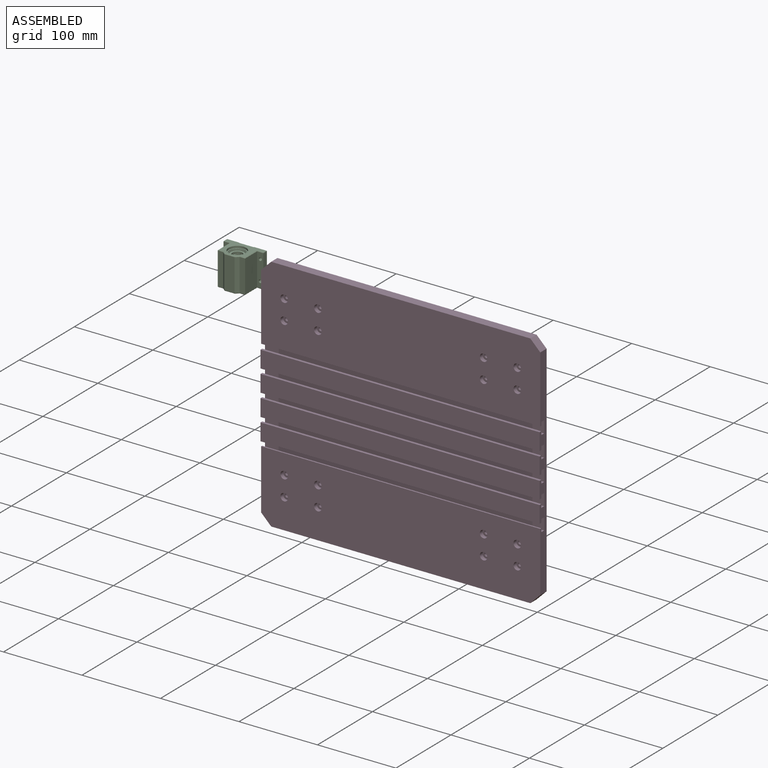
[diagram: assembled view]
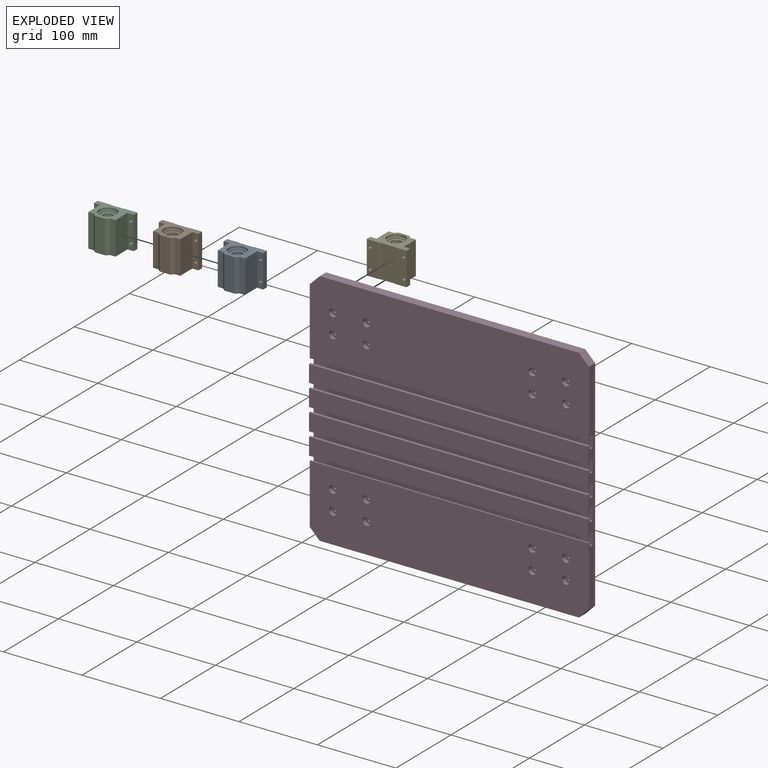
[diagram: exploded view]
GUIDED TOUR — MATED ASSEMBLY (Onshape document 6d747530b61adc1890723c05, AutoMate assembly 6d747530b61adc1890723c05_05204a91cc67c9219d2de99d_6c768d0ff865540b79f1cda2_default)

This assembly has 5 components, labeled P0..P4 below (a component is one placed occurrence of a part; the same part can appear more than once), held together by 1 mate. A mate is a constraint between two components; its type names the relative motion it leaves free:
  FASTENED — locks the two components together rigidly (no relative motion).
Axis/direction vectors are unit vectors and 'through' points are millimeter coordinates, both in the assembly's world frame.

MATES
  1. FASTENED "Fastened 1": P4 <-> P3, direction (0.000, -1.000, 0.000) through (-122.71, 11.77, 182.91) mm

ASSEMBLY ORDER
  1. P0 — the base component [order heuristic]
  2. P1 — core [order heuristic]
  3. P2 — core [order heuristic]
  4. P3 [order verified]
  5. P4 [order verified]
Order-tag legend:
  [order verified] — this step's position reverses a verified removal order: the component was checked to insert without passing through the ones already placed.
  [order heuristic] — the first 3 components form the assembly's core: parts whose collision-free extraction could not be verified, listed in mate-graph order.

Of the 5 components, 1 carries the full construction recipe — the FeatureScript program that regenerates the part's solid from scratch; the rest are supplied as boundary geometry only.
Each toured component is shown spotlighted twice — in the assembled view, then in the exploded view, where a leader line traces a displaced component back to its assembled socket (saturated green if recipe-attached, orange if geometry-only; every other component desaturated gray) — followed by its recipe or geometry summary and the mates that hold it.
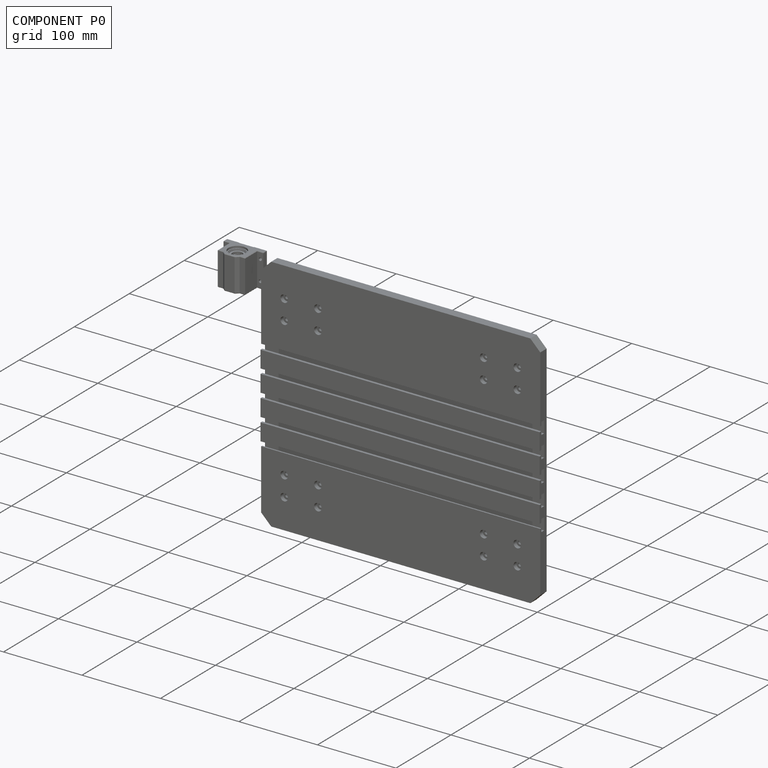
[diagram: component P0 — assembled]
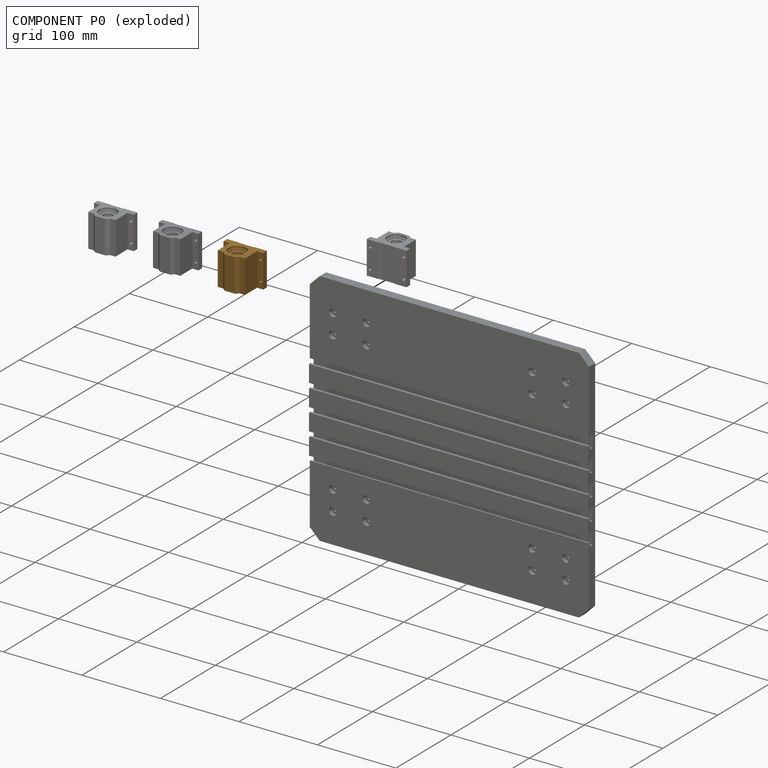
[diagram: component P0 — exploded]
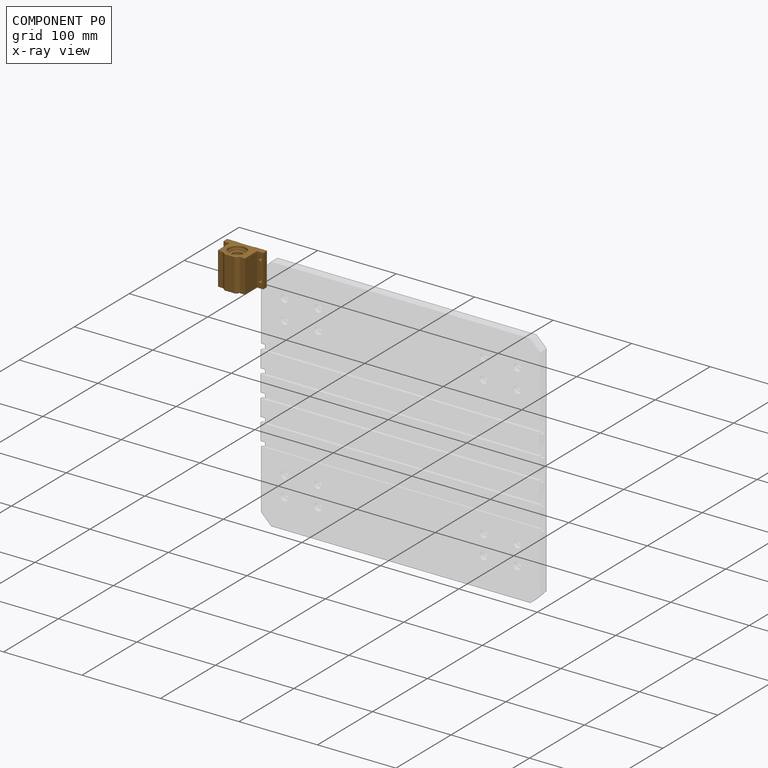
[diagram: component P0 — x-ray view]
COMPONENT P0 — geometry summary (no construction recipe available for this part):
  bounding box: 52.8 x 44.9 x 33.8 mm
  B-rep topology: 1 solid, 341 faces, 2242 edges
  volume: 40687 mm^3 (51% of its bounding box)
  symmetry: mirror-symmetric across its z mid-plane
Held by: no mates (free).
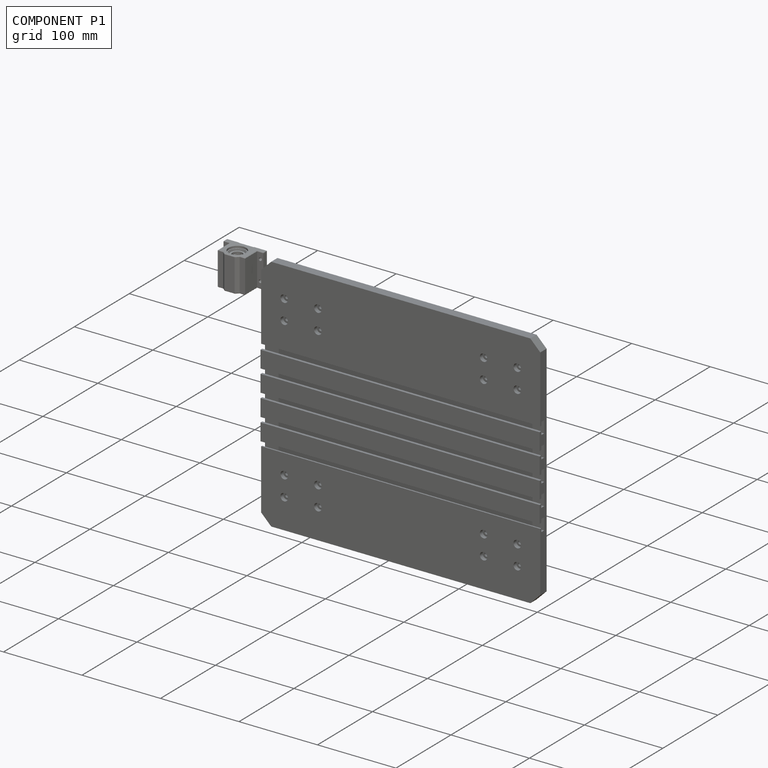
[diagram: component P1 — assembled]
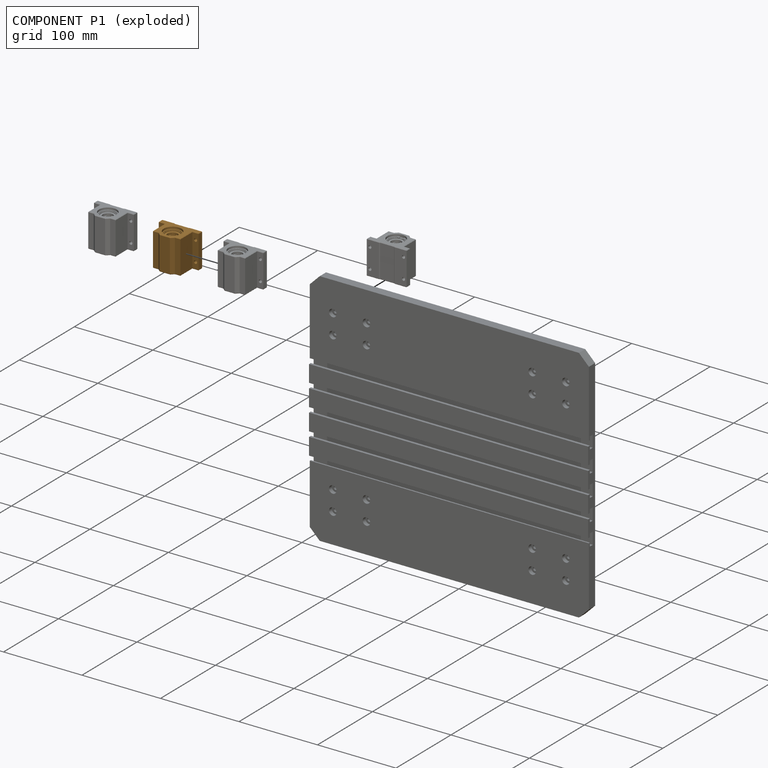
[diagram: component P1 — exploded]
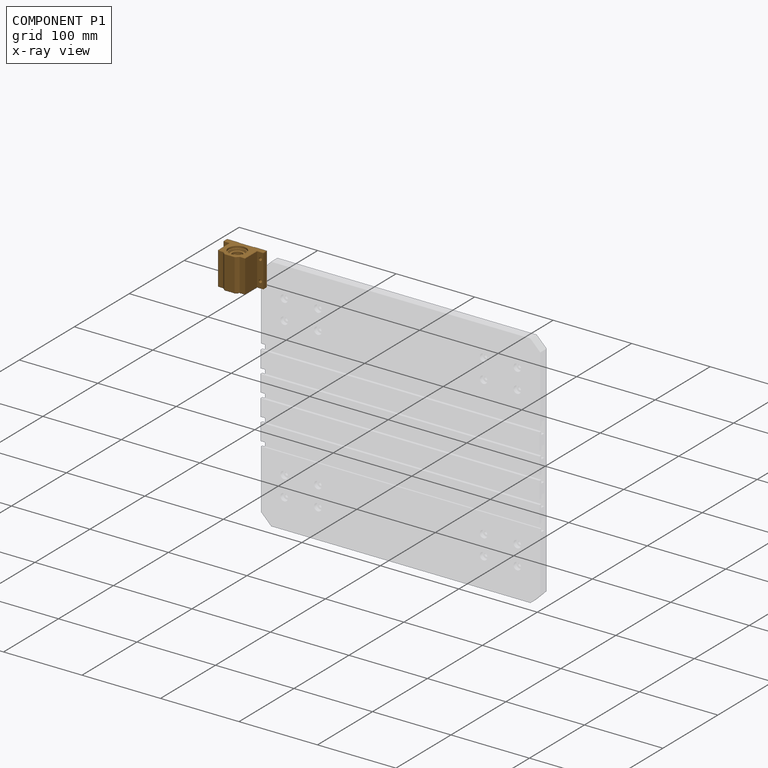
[diagram: component P1 — x-ray view]
COMPONENT P1 — geometry summary (no construction recipe available for this part):
  bounding box: 52.8 x 44.9 x 33.8 mm
  B-rep topology: 1 solid, 341 faces, 2242 edges
  volume: 40687 mm^3 (51% of its bounding box)
  symmetry: mirror-symmetric across its z mid-plane
Held by: no mates (free).
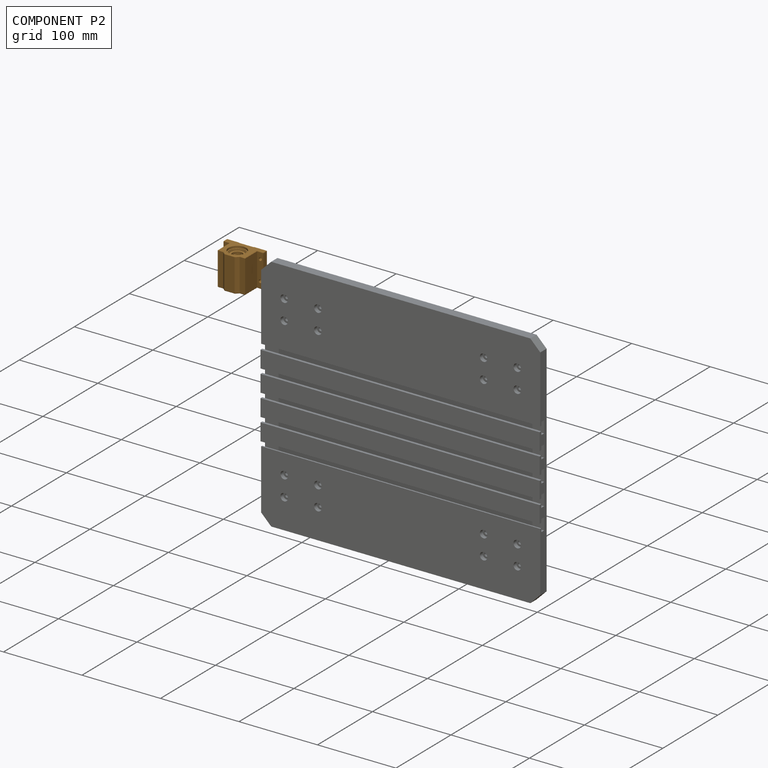
[diagram: component P2 — assembled]
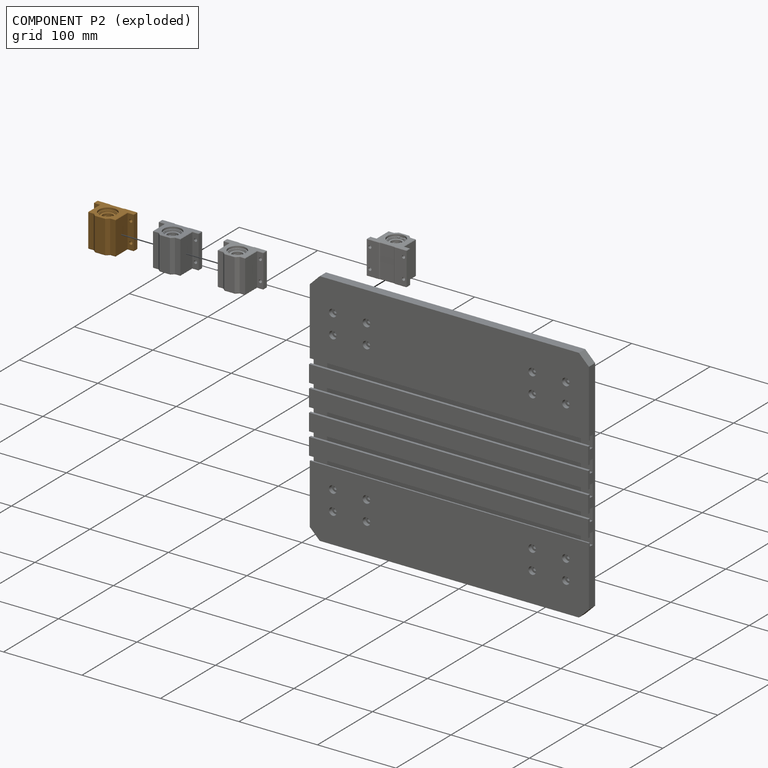
[diagram: component P2 — exploded]
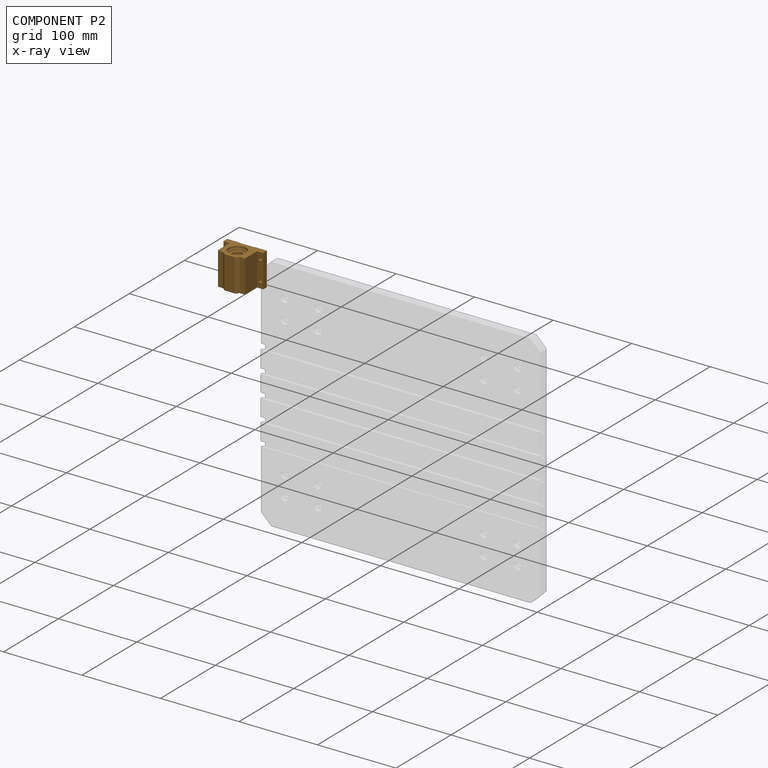
[diagram: component P2 — x-ray view]
COMPONENT P2 — geometry summary (no construction recipe available for this part):
  bounding box: 52.8 x 44.9 x 33.8 mm
  B-rep topology: 1 solid, 341 faces, 2242 edges
  volume: 40687 mm^3 (51% of its bounding box)
  symmetry: mirror-symmetric across its z mid-plane
Held by: no mates (free).
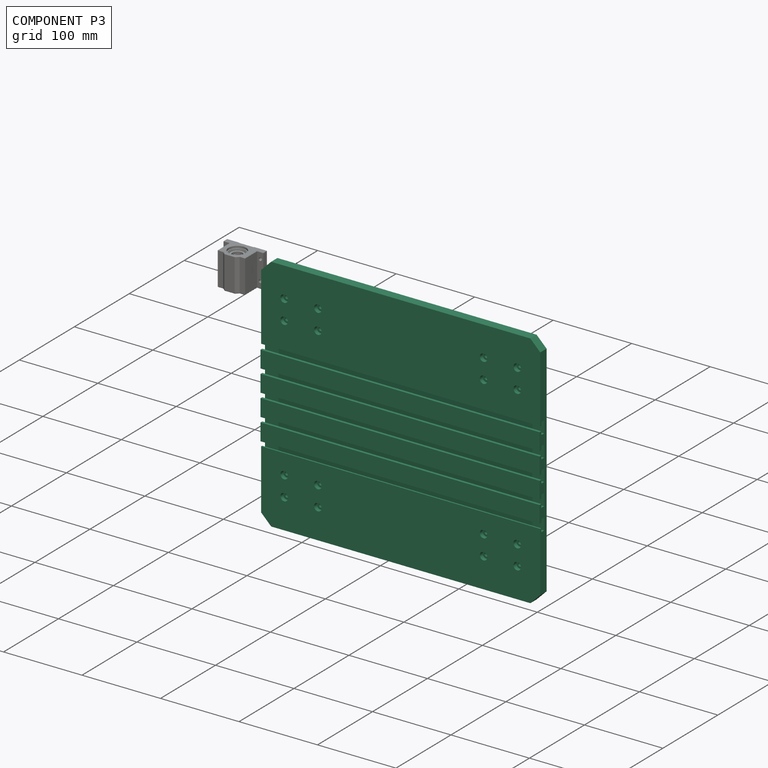
[diagram: component P3 — assembled]
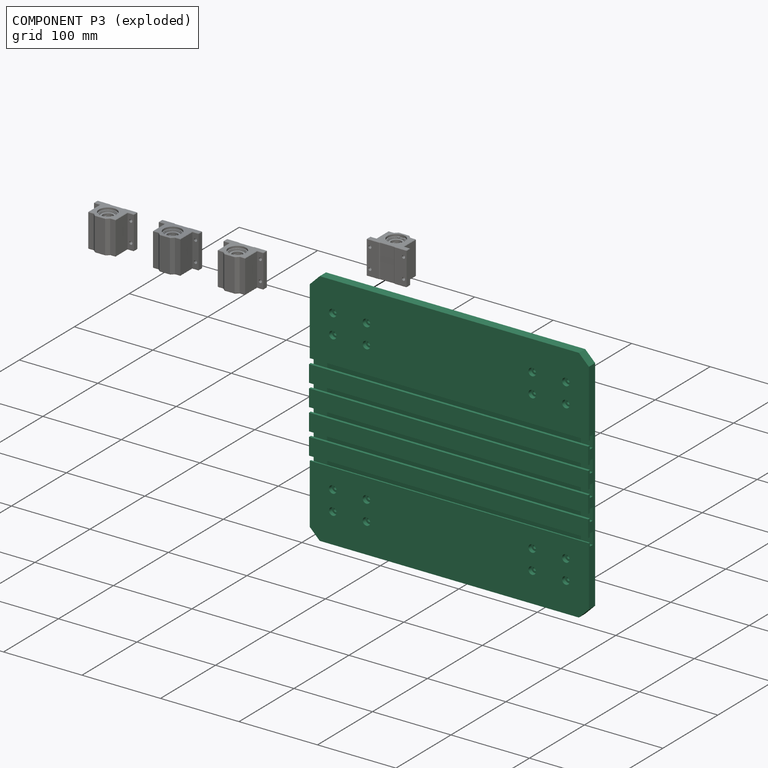
[diagram: component P3 — exploded]
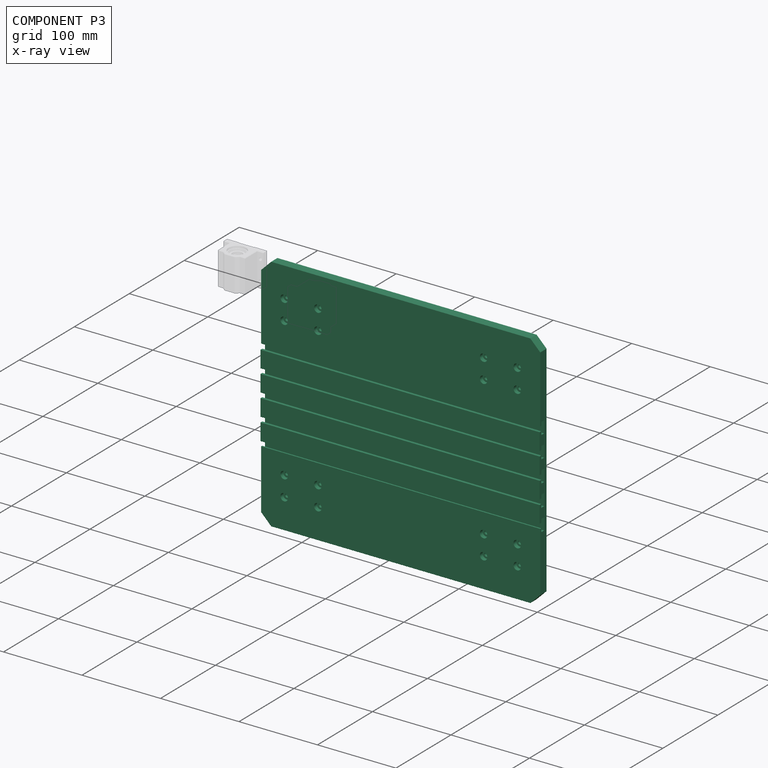
[diagram: component P3 — x-ray view]
COMPONENT P3 — recipe-attached (CADFS 00119041, mesh-verified: the recipe's output STEP matches this component's geometry to below the mesh-comparison resolution (tessellation chordal tolerance ~0.703 mm)).
Held by: FASTENED mate "Fastened 1" to P4.
Construction recipe (FeatureScript — the CAD program that rebuilds this solid; sketch coordinates are in the units given by the * unit suffixes, e.g. mm):

FeatureScript 1511;
import(path : "onshape/std/geometry.fs", version : "1511.0");
import(path : "onshape/std/common.fs", version : "1511.0");
const mm = millimeter;
const VERTEX = EntityType.VERTEX;
const EDGE = EntityType.EDGE;
const FACE = EntityType.FACE;
const BODY = EntityType.BODY;
function v(x, y){return vector(x, y);}
function OD(order){return orderDisambiguation(order);}
function OSD(set){return originalSetDisambiguation(set);}
function TD(topology){return topologyDisambiguation(topology);}
function TDD(query){return trueDependencyDisambiguation(query);}
function sQuery(a, b, c) {return sketchEntityQuery(a, b, c);}

annotation { "Feature Type Name" : "Feature", "Feature Type Description" : "" }
export const myFeature = defineFeature(function(context is Context, id is Id, definition is map)
    precondition{}
    {
        {
            var Q0;
            Q0=qCreatedBy(makeId("Front.planeOp"),FACE);
            var sketch = newSketch(context, id + "F0", { "sketchPlane" : qUnion([Q0])});
            skLineSegment(sketch, "E0.bottom", {"start": v(0, 0) * mm, "end": v(355.6, 0) * mm});
            skLineSegment(sketch, "E0.top", {"start": v(0, 304.8) * mm, "end": v(355.6, 304.8) * mm});
            skLineSegment(sketch, "E0.left", {"start": v(0, 0) * mm, "end": v(0, 304.8) * mm});
            skLineSegment(sketch, "E0.right", {"start": v(355.6, 0) * mm, "end": v(355.6, 304.8) * mm});
            skSolve(sketch);
        }
        {
            var Q0;
            Q0 = qSketchRegion(id + "F0", true);
            extrude(context, id + "F1", {"entities" : qUnion([Q0]), "depth" : 12.7 * mm});
        }
        {
            var Q0;
            Q0=makeQuery(id+"F1.opExtrude","CAP_FACE",FACE,{"disambiguationData":[OSD([sQuery(id+"F0.wireOp",EDGE,"E0.bottom"),sQuery(id+"F0.wireOp",EDGE,"E0.top"),sQuery(id+"F0.wireOp",EDGE,"E0.left"),sQuery(id+"F0.wireOp",EDGE,"E0.right")])],"isStart":false});
            var sketch = newSketch(context, id + "F2", { "sketchPlane" : qUnion([Q0])});
            skLineSegment(sketch, "E1.bottom", {"start": v(72.21, 266.7) * mm, "end": v(283.36, 266.7) * mm, "construction": true});
            skLineSegment(sketch, "E1.top", {"start": v(72.21, 38.1) * mm, "end": v(283.36, 38.1) * mm, "construction": true});
            skLineSegment(sketch, "E1.left", {"start": v(72.21, 266.7) * mm, "end": v(72.21, 38.1) * mm, "construction": true});
            skLineSegment(sketch, "E1.right", {"start": v(283.36, 266.7) * mm, "end": v(283.36, 38.1) * mm, "construction": true});
            skPoint(sketch, "E2", {"position": v(72.21, 266.7) * mm});
            skPoint(sketch, "E3", {"position": v(29.34, 266.7) * mm});
            skPoint(sketch, "E4", {"position": v(283.36, 266.7) * mm});
            skPoint(sketch, "E5", {"position": v(326.24, 266.7) * mm});
            skPoint(sketch, "E6", {"position": v(72.21, 38.1) * mm});
            skPoint(sketch, "E7", {"position": v(29.34, 38.1) * mm});
            skPoint(sketch, "E8", {"position": v(283.36, 38.1) * mm});
            skPoint(sketch, "E9", {"position": v(326.24, 38.1) * mm});
            skPoint(sketch, "E10", {"position": v(29.34, 241.3) * mm});
            skPoint(sketch, "E11", {"position": v(72.21, 241.3) * mm});
            skPoint(sketch, "E12", {"position": v(283.36, 241.3) * mm});
            skPoint(sketch, "E13", {"position": v(326.24, 241.3) * mm});
            skPoint(sketch, "E14", {"position": v(283.36, 63.5) * mm});
            skPoint(sketch, "E15", {"position": v(326.24, 63.5) * mm});
            skPoint(sketch, "E16", {"position": v(72.21, 63.5) * mm});
            skPoint(sketch, "E17", {"position": v(29.34, 63.5) * mm});
            skSolve(sketch);
        }
        {
            var Q0;
            Q0=sQuery(id+"F2.wireOp",VERTEX,"E3");
            var Q1;
            Q1=sQuery(id+"F2.wireOp",VERTEX,"E10");
            var Q2;
            Q2=sQuery(id+"F2.wireOp",VERTEX,"E11");
            var Q3;
            Q3=sQuery(id+"F2.wireOp",VERTEX,"E2");
            var Q4;
            Q4=sQuery(id+"F2.wireOp",VERTEX,"E17");
            var Q5;
            Q5=sQuery(id+"F2.wireOp",VERTEX,"E7");
            var Q6;
            Q6=sQuery(id+"F2.wireOp",VERTEX,"E6");
            var Q7;
            Q7=sQuery(id+"F2.wireOp",VERTEX,"E16");
            var Q8;
            Q8=sQuery(id+"F2.wireOp",VERTEX,"E14");
            var Q9;
            Q9=sQuery(id+"F2.wireOp",VERTEX,"E8");
            var Q10;
            Q10=sQuery(id+"F2.wireOp",VERTEX,"E9");
            var Q11;
            Q11=sQuery(id+"F2.wireOp",VERTEX,"E15");
            var Q12;
            Q12=sQuery(id+"F2.wireOp",VERTEX,"E13");
            var Q13;
            Q13=sQuery(id+"F2.wireOp",VERTEX,"E12");
            var Q14;
            Q14=sQuery(id+"F2.wireOp",VERTEX,"E4");
            var Q15;
            Q15=sQuery(id+"F2.wireOp",VERTEX,"E5");
            var Q16;
            Q16=makeQuery(id+"F1.opExtrude","SWEPT_BODY",BODY,{"disambiguationData":[OSD([sQuery(id+"F0.wireOp",EDGE,"E0.bottom"),sQuery(id+"F0.wireOp",EDGE,"E0.top"),sQuery(id+"F0.wireOp",EDGE,"E0.left"),sQuery(id+"F0.wireOp",EDGE,"E0.right")])]});
            hole(context, id + "F3", {"style" : HoleStyle.C_BORE, "endStyle" : HoleEndStyle.THROUGH, "holeDiameter" : 4.78 * mm, "cBoreDiameter" : 9.52 * mm, "cBoreDepth" : 6.35 * mm, "locations" : qUnion([Q0, Q1, Q2, Q3, Q4, Q5, Q6, Q7, Q8, Q9, Q10, Q11, Q12, Q13, Q14, Q15]), "scope" : qUnion([Q16]), "isTappedThrough" : true});
        }
        {
            var Q0;
            Q0=makeQuery(id+"F1.opExtrude","SWEPT_FACE",FACE,{"disambiguationData":[OSD([sQuery(id+"F0.wireOp",EDGE,"E0.right")])]});
            var sketch = newSketch(context, id + "F4", { "sketchPlane" : qUnion([Q0])});
            skPoint(sketch, "E18", {"position": v(-12.7, 88.9) * mm});
            skLineSegment(sketch, "E19", {"start": v(-12.7, 88.9) * mm, "end": v(-9.52, 88.9) * mm});
            skLineSegment(sketch, "E20", {"start": v(-9.52, 88.9) * mm, "end": v(-9.52, 84.45) * mm});
            skLineSegment(sketch, "E21", {"start": v(-9.52, 84.45) * mm, "end": v(-4.44, 84.45) * mm});
            skLineSegment(sketch, "E22", {"start": v(-4.44, 84.45) * mm, "end": v(-4.44, 99.7) * mm});
            skLineSegment(sketch, "E23", {"start": v(-4.44, 99.7) * mm, "end": v(-9.53, 99.7) * mm});
            skLineSegment(sketch, "E24", {"start": v(-9.53, 99.7) * mm, "end": v(-9.53, 95.25) * mm});
            skLineSegment(sketch, "E25", {"start": v(-9.53, 95.25) * mm, "end": v(-12.7, 95.25) * mm});
            skPoint(sketch, "E26", {"position": v(-4.45, 112.4) * mm});
            skLineSegment(sketch, "E27", {"start": v(-4.45, 112.4) * mm, "end": v(-4.45, 127.64) * mm});
            skLineSegment(sketch, "E28", {"start": v(-4.45, 127.64) * mm, "end": v(-9.53, 127.64) * mm});
            skLineSegment(sketch, "E29", {"start": v(-9.53, 127.64) * mm, "end": v(-9.53, 123.19) * mm});
            skLineSegment(sketch, "E30", {"start": v(-9.53, 123.19) * mm, "end": v(-12.7, 123.19) * mm});
            skLineSegment(sketch, "E31", {"start": v(-9.53, 112.4) * mm, "end": v(-4.45, 112.4) * mm});
            skLineSegment(sketch, "E32", {"start": v(-9.53, 112.4) * mm, "end": v(-9.53, 116.84) * mm});
            skLineSegment(sketch, "E33", {"start": v(-12.7, 116.87) * mm, "end": v(-9.53, 116.84) * mm});
            skPoint(sketch, "E34", {"position": v(-4.45, 127.64) * mm});
            skPoint(sketch, "E35", {"position": v(-4.45, 140.33) * mm});
            skLineSegment(sketch, "E36", {"start": v(-4.45, 140.33) * mm, "end": v(-4.45, 155.57) * mm});
            skLineSegment(sketch, "E37", {"start": v(-4.45, 155.57) * mm, "end": v(-9.53, 155.57) * mm});
            skLineSegment(sketch, "E38", {"start": v(-9.53, 155.57) * mm, "end": v(-9.53, 151.13) * mm});
            skLineSegment(sketch, "E39", {"start": v(-9.53, 151.13) * mm, "end": v(-12.7, 151.13) * mm});
            skLineSegment(sketch, "E40", {"start": v(-4.45, 140.33) * mm, "end": v(-9.53, 140.33) * mm});
            skLineSegment(sketch, "E41", {"start": v(-9.53, 140.33) * mm, "end": v(-9.53, 144.78) * mm});
            skLineSegment(sketch, "E42", {"start": v(-9.53, 144.78) * mm, "end": v(-12.7, 144.78) * mm});
            skPoint(sketch, "E43", {"position": v(-4.45, 168.27) * mm});
            skLineSegment(sketch, "E44", {"start": v(-4.45, 168.27) * mm, "end": v(-4.45, 183.51) * mm});
            skLineSegment(sketch, "E45", {"start": v(-4.45, 183.51) * mm, "end": v(-9.53, 183.51) * mm});
            skLineSegment(sketch, "E46", {"start": v(-9.53, 183.51) * mm, "end": v(-9.53, 179.07) * mm});
            skLineSegment(sketch, "E47", {"start": v(-9.53, 179.07) * mm, "end": v(-12.7, 179.07) * mm});
            skLineSegment(sketch, "E48", {"start": v(-4.45, 168.27) * mm, "end": v(-9.53, 168.27) * mm});
            skLineSegment(sketch, "E49", {"start": v(-9.53, 168.27) * mm, "end": v(-9.53, 172.72) * mm});
            skLineSegment(sketch, "E50", {"start": v(-9.53, 172.72) * mm, "end": v(-12.7, 172.72) * mm});
            skPoint(sketch, "E51", {"position": v(-4.45, 196.21) * mm});
            skLineSegment(sketch, "E52", {"start": v(-4.45, 196.21) * mm, "end": v(-4.45, 211.45) * mm});
            skLineSegment(sketch, "E53", {"start": v(-4.45, 211.45) * mm, "end": v(-9.53, 211.45) * mm});
            skLineSegment(sketch, "E54", {"start": v(-9.53, 211.45) * mm, "end": v(-9.53, 207) * mm});
            skLineSegment(sketch, "E55", {"start": v(-9.53, 207) * mm, "end": v(-12.7, 207) * mm});
            skLineSegment(sketch, "E56", {"start": v(-4.45, 196.21) * mm, "end": v(-9.53, 196.21) * mm});
            skLineSegment(sketch, "E57", {"start": v(-9.53, 196.21) * mm, "end": v(-9.53, 200.66) * mm});
            skLineSegment(sketch, "E58", {"start": v(-9.53, 200.66) * mm, "end": v(-12.7, 200.66) * mm});
            skSolve(sketch);
        }
        {
            var Q0;
            Q0=makeQuery(id+"F4.imprint","IMPRINT",FACE,{"disambiguationData":[TD([[makeQuery(id+"F4.imprint","IMPRINT",EDGE,{"derivedFrom":sQuery(id+"F4.wireOp",EDGE,"E52")}),1.0]])]});
            var Q1;
            Q1=makeQuery(id+"F4.imprint","IMPRINT",FACE,{"disambiguationData":[TD([[makeQuery(id+"F4.imprint","IMPRINT",EDGE,{"derivedFrom":sQuery(id+"F4.wireOp",EDGE,"E44")}),1.0]])]});
            var Q2;
            Q2=makeQuery(id+"F4.imprint","IMPRINT",FACE,{"disambiguationData":[TD([[makeQuery(id+"F4.imprint","IMPRINT",EDGE,{"derivedFrom":sQuery(id+"F4.wireOp",EDGE,"E36")}),1.0]])]});
            var Q3;
            Q3=makeQuery(id+"F4.imprint","IMPRINT",FACE,{"disambiguationData":[TD([[makeQuery(id+"F4.imprint","IMPRINT",EDGE,{"derivedFrom":sQuery(id+"F4.wireOp",EDGE,"E27")}),1.0]])]});
            var Q4;
            {var subQ0=sQuery(id+"F4.wireOp",EDGE,"E19");Q4=makeQuery(id+"F4.imprint","IMPRINT",FACE,{"disambiguationData":[TD([[makeQuery(id+"F4.imprint","IMPRINT",EDGE,{"derivedFrom":subQ0}),1.0]])]});}
            extrude(context, id + "F5", {"entities" : qUnion([Q0, Q1, Q2, Q3, Q4]), "operationType" : NewBodyOperationType.REMOVE, "endBound" : BoundingType.THROUGH_ALL, "oppositeDirection" : true, "depth" : 25.4 * mm});
        }
        {
            var Q0;
            {var subQ0=sQuery(id+"F0.wireOp",EDGE,"E0.left");var subQ1=sQuery(id+"F0.wireOp",EDGE,"E0.top");var subQ2=sQuery(id+"F0.wireOp",EDGE,"E0.right");Q0=makeQuery(id+"F5.boolean.opBoolean","SPLIT",FACE,{"disambiguationData":[TD([makeQuery(id+"F1.opExtrude","SWEPT_FACE",FACE,{"disambiguationData":[OSD([subQ1])]})])],"derivedFrom":makeQuery(id+"F1.opExtrude","CAP_FACE",FACE,{"disambiguationData":[OSD([sQuery(id+"F0.wireOp",EDGE,"E0.bottom"),subQ1,subQ0,subQ2])],"isStart":false})});}
            var sketch = newSketch(context, id + "F6", { "sketchPlane" : qUnion([Q0])});
            skPoint(sketch, "E59", {"position": v(114.3, 279.4) * mm});
            skPoint(sketch, "E60", {"position": v(114.3, 247.65) * mm});
            skPoint(sketch, "E61", {"position": v(241.3, 279.4) * mm});
            skPoint(sketch, "E62", {"position": v(241.3, 247.65) * mm});
            skLineSegment(sketch, "E63", {"start": v(114.3, 279.4) * mm, "end": v(241.3, 279.4) * mm, "construction": true});
            skLineSegment(sketch, "E64", {"start": v(241.3, 247.65) * mm, "end": v(241.3, 279.4) * mm, "construction": true});
            skLineSegment(sketch, "E65", {"start": v(241.3, 247.65) * mm, "end": v(114.3, 247.65) * mm, "construction": true});
            skLineSegment(sketch, "E66", {"start": v(114.3, 279.4) * mm, "end": v(114.3, 247.65) * mm, "construction": true});
            skLineSegment(sketch, "E67", {"start": v(177.8, 279.4) * mm, "end": v(177.8, 247.65) * mm, "construction": true});
            skSolve(sketch);
        }
        {
            var Q0;
            Q0 = qSketchRegion(id + "F6", true);
            var Q1;
            {var subQ2=sQuery(id+"F0.wireOp",EDGE,"E0.top");Q1=makeQuery(id+"F6.imprint","IMPRINT",FACE,{"disambiguationData":[TD([[makeQuery(id+"F6.imprint","IMPRINT",EDGE,{"derivedFrom":makeQuery(id+"F1.opExtrude","CAP_EDGE",EDGE,{"disambiguationData":[OSD([subQ2])],"isStart":false})}),-1.0]])]});}
            extrude(context, id + "F7", {"entities" : qUnion([Q0, Q1]), "operationType" : NewBodyOperationType.REMOVE, "oppositeDirection" : true, "depth" : 1.27 * mm});
        }
        {
            var Q0;
            {var subQ0=sQuery(id+"F0.wireOp",EDGE,"E0.bottom");var subQ1=sQuery(id+"F0.wireOp",EDGE,"E0.left");var subQ2=sQuery(id+"F0.wireOp",EDGE,"E0.right");Q0=makeQuery(id+"F5.boolean.opBoolean","SPLIT",FACE,{"disambiguationData":[TD([makeQuery(id+"F1.opExtrude","SWEPT_FACE",FACE,{"disambiguationData":[OSD([subQ0])]})])],"derivedFrom":makeQuery(id+"F1.opExtrude","CAP_FACE",FACE,{"disambiguationData":[OSD([subQ0,sQuery(id+"F0.wireOp",EDGE,"E0.top"),subQ1,subQ2])],"isStart":false})});}
            var sketch = newSketch(context, id + "F8", { "sketchPlane" : qUnion([Q0])});
            skPoint(sketch, "E68", {"position": v(127, 25.4) * mm});
            skPoint(sketch, "E69", {"position": v(127, 57.15) * mm});
            skPoint(sketch, "E70", {"position": v(228.6, 57.15) * mm});
            skPoint(sketch, "E71", {"position": v(228.6, 25.4) * mm});
            skLineSegment(sketch, "E72", {"start": v(127, 57.15) * mm, "end": v(127, 25.4) * mm, "construction": true});
            skLineSegment(sketch, "E73", {"start": v(228.6, 25.4) * mm, "end": v(127, 25.4) * mm, "construction": true});
            skLineSegment(sketch, "E74", {"start": v(127, 57.15) * mm, "end": v(228.6, 57.15) * mm, "construction": true});
            skLineSegment(sketch, "E75", {"start": v(228.6, 25.4) * mm, "end": v(228.6, 57.15) * mm, "construction": true});
            skLineSegment(sketch, "E76", {"start": v(177.8, 57.15) * mm, "end": v(177.8, 25.4) * mm, "construction": true});
            skSolve(sketch);
        }
        {
            var Q0;
            Q0 = qSketchRegion(id + "F8", true);
            var Q1;
            {var subQ0=sQuery(id+"F0.wireOp",EDGE,"E0.bottom");Q1=makeQuery(id+"F8.imprint","IMPRINT",FACE,{"disambiguationData":[TD([[makeQuery(id+"F8.imprint","IMPRINT",EDGE,{"derivedFrom":makeQuery(id+"F1.opExtrude","CAP_EDGE",EDGE,{"disambiguationData":[OSD([subQ0])],"isStart":false})}),1.0]])]});}
            extrude(context, id + "F9", {"entities" : qUnion([Q0, Q1]), "operationType" : NewBodyOperationType.REMOVE, "oppositeDirection" : true, "depth" : 1.27 * mm});
        }
        {
            var Q0;
            Q0=makeQuery(id+"F1.opExtrude","CAP_FACE",FACE,{"disambiguationData":[OSD([sQuery(id+"F0.wireOp",EDGE,"E0.bottom"),sQuery(id+"F0.wireOp",EDGE,"E0.top"),sQuery(id+"F0.wireOp",EDGE,"E0.left"),sQuery(id+"F0.wireOp",EDGE,"E0.right")])],"isStart":true});
            var sketch = newSketch(context, id + "F10", { "sketchPlane" : qUnion([Q0])});
            skPoint(sketch, "E77", {"position": v(-215.9, 101.6) * mm});
            skPoint(sketch, "E78", {"position": v(-215.9, 33.4) * mm});
            skPoint(sketch, "E79", {"position": v(-139.7, 101.6) * mm});
            skPoint(sketch, "E80", {"position": v(-139.7, 33.4) * mm});
            skSolve(sketch);
        }
        {
            var Q0;
            Q0=sQuery(id+"F10.wireOp",VERTEX,"E77");
            var Q1;
            Q1=sQuery(id+"F10.wireOp",VERTEX,"E78");
            var Q2;
            Q2=sQuery(id+"F10.wireOp",VERTEX,"E80");
            var Q3;
            Q3=sQuery(id+"F10.wireOp",VERTEX,"E79");
            var Q4;
            Q4=makeQuery(id+"F1.opExtrude","SWEPT_BODY",BODY,{"disambiguationData":[OSD([sQuery(id+"F0.wireOp",EDGE,"E0.bottom"),sQuery(id+"F0.wireOp",EDGE,"E0.top"),sQuery(id+"F0.wireOp",EDGE,"E0.left"),sQuery(id+"F0.wireOp",EDGE,"E0.right")])]});
            hole(context, id + "F11", {"style" : HoleStyle.SIMPLE, "endStyle" : HoleEndStyle.BLIND, "holeDiameter" : 6.35 * mm, "holeDepth" : 6.35 * mm, "locations" : qUnion([Q0, Q1, Q2, Q3]), "scope" : qUnion([Q4])});
        }
        {
            var Q0;
            Q0=makeQuery(id+"F1.opExtrude","SWEPT_EDGE",EDGE,{"disambiguationData":[OSD([sQuery(id+"F0.wireOp",EDGE,"E0.top"),sQuery(id+"F0.wireOp",EDGE,"E0.right")])]});
            var Q1;
            Q1=makeQuery(id+"F1.opExtrude","SWEPT_EDGE",EDGE,{"disambiguationData":[OSD([sQuery(id+"F0.wireOp",EDGE,"E0.bottom"),sQuery(id+"F0.wireOp",EDGE,"E0.right")])]});
            var Q2;
            Q2=makeQuery(id+"F1.opExtrude","SWEPT_EDGE",EDGE,{"disambiguationData":[OSD([sQuery(id+"F0.wireOp",EDGE,"E0.top"),sQuery(id+"F0.wireOp",EDGE,"E0.left")])]});
            var Q3;
            Q3=makeQuery(id+"F1.opExtrude","SWEPT_EDGE",EDGE,{"disambiguationData":[OSD([sQuery(id+"F0.wireOp",EDGE,"E0.bottom"),sQuery(id+"F0.wireOp",EDGE,"E0.left")])]});
            chamfer(context, id + "F12", {"entities" : qUnion([Q0, Q1, Q2, Q3]), "width" : 12.7 * mm, "tangentPropagation" : true});
        }
    });
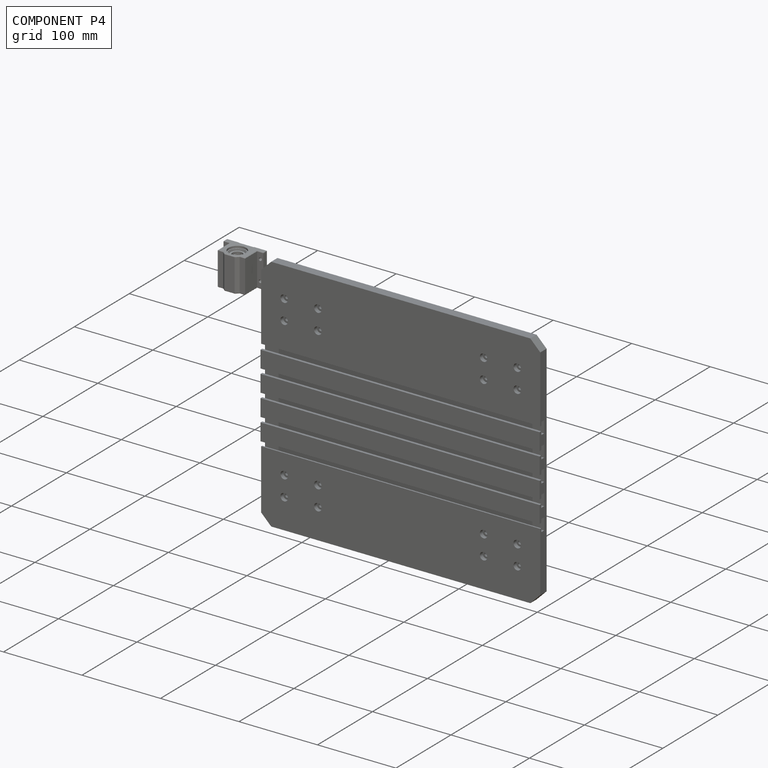
[diagram: component P4 — assembled]
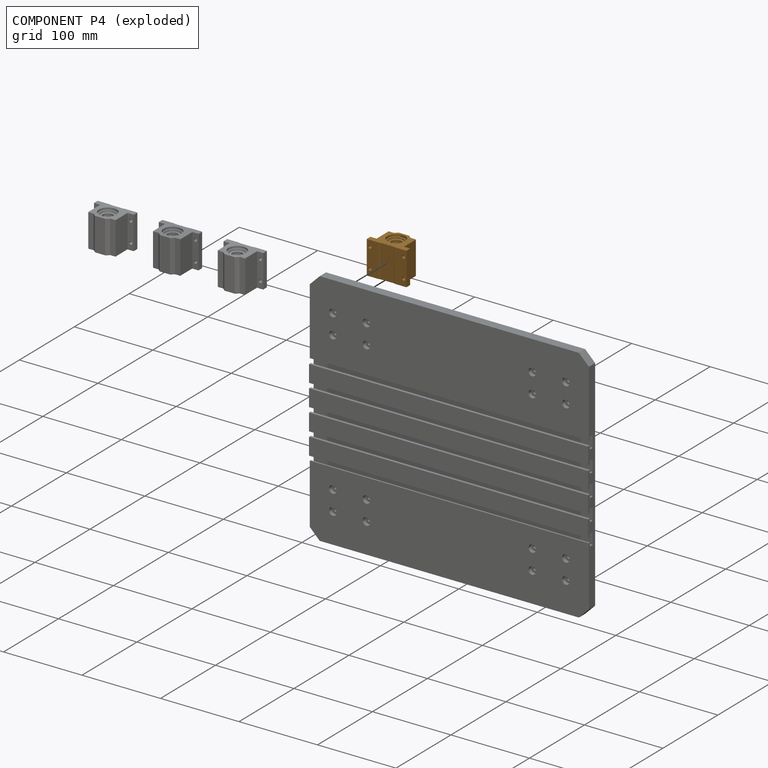
[diagram: component P4 — exploded]
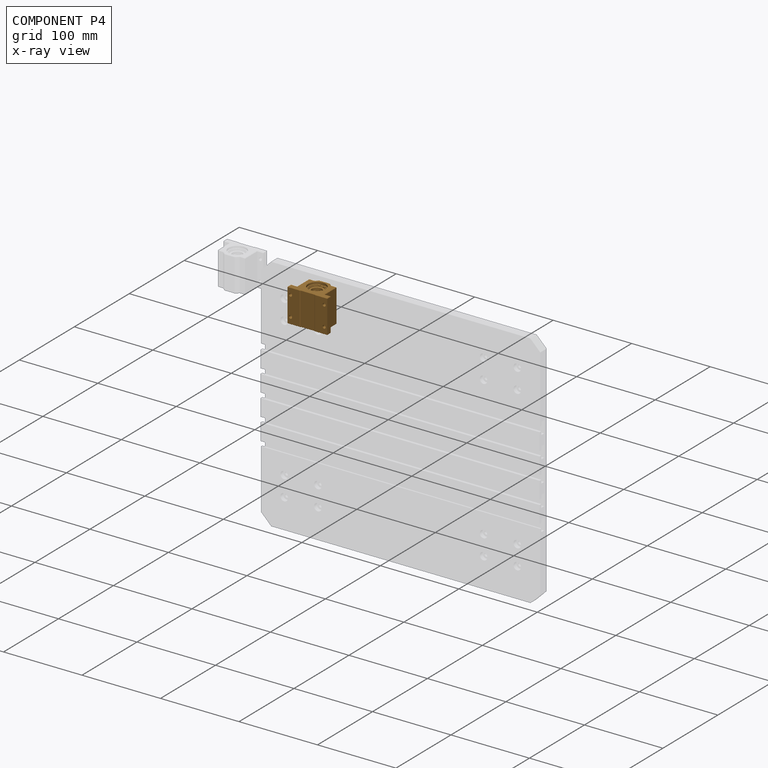
[diagram: component P4 — x-ray view]
COMPONENT P4 — geometry summary (no construction recipe available for this part):
  bounding box: 52.8 x 44.9 x 33.8 mm
  B-rep topology: 1 solid, 341 faces, 2242 edges
  volume: 40687 mm^3 (51% of its bounding box)
  symmetry: mirror-symmetric across its z mid-plane
Held by: FASTENED mate "Fastened 1" to P3.
PROVENANCE & LICENSES
Assembly (occurrences, transforms, mates, per-part STEP geometry): AutoMate dataset, Zenodo record 7776208, CC0.
Construction recipes: CADFS (HuggingFace VladPyatov/CADFS, CC-BY-4.0, layered over the ABC dataset), FeatureScript reconstruction programs keyed by ABC model id.
Join: ABC meta listings map ABC model id -> Onshape documentId; within a shared document, parts are matched by geometric signature (bounding-box dims + volume at 0.1% relative tolerance, exact B-rep face/solid counts).
Verification: 1 of this assembly's 5 components carries a recipe attachment, and every attachment is mesh-verified: the CADFS STEP and the AutoMate member STEP were compared as meshes in their shared local frame (symmetric sampled-point-to-mesh distance); worst across the 1 attachment: below the mesh-comparison resolution (tessellation chordal tolerance ~0.703 mm) on a 469 mm part.
Renders: orthographic iso camera (az 35 / el 25); the floor grid conveys scale (grid pitch printed in each image; no ruler). In the exploded view each component is displaced by its stored offset vector: the offsets alone carry the explosion direction (mate normal/axis signs are not orientation cues and do not encode it), and separation distances are assigned per mate-chain, not proportionally to assembly-order depth.
